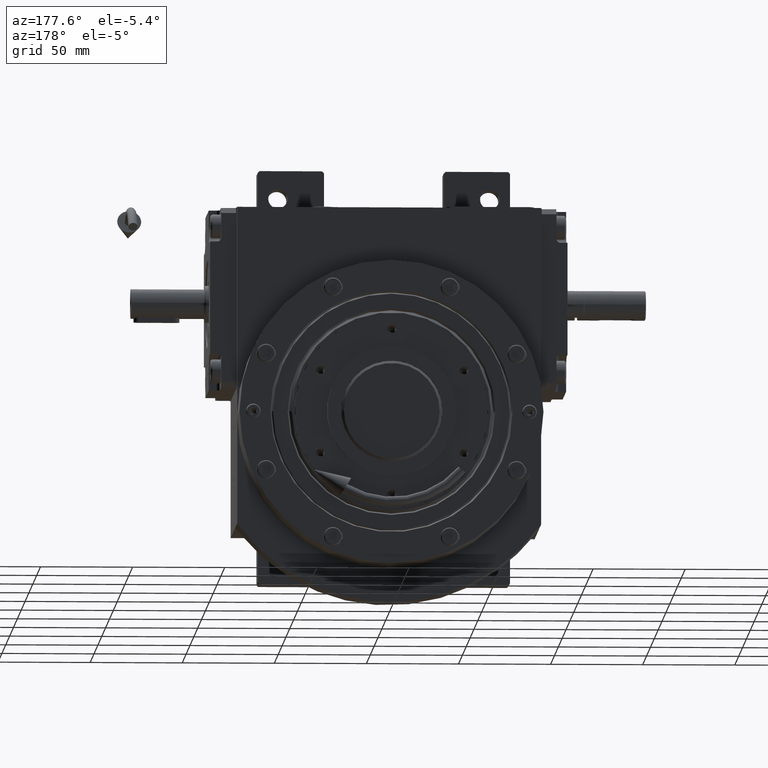
[diagram: clean part render]
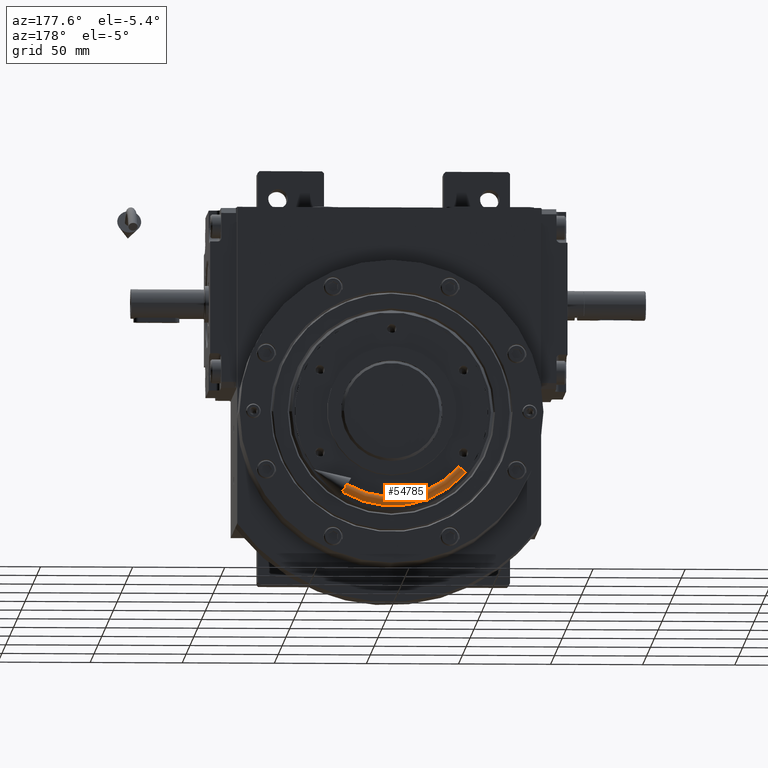
[diagram: same view with one face highlighted and labeled with its STEP entity id]
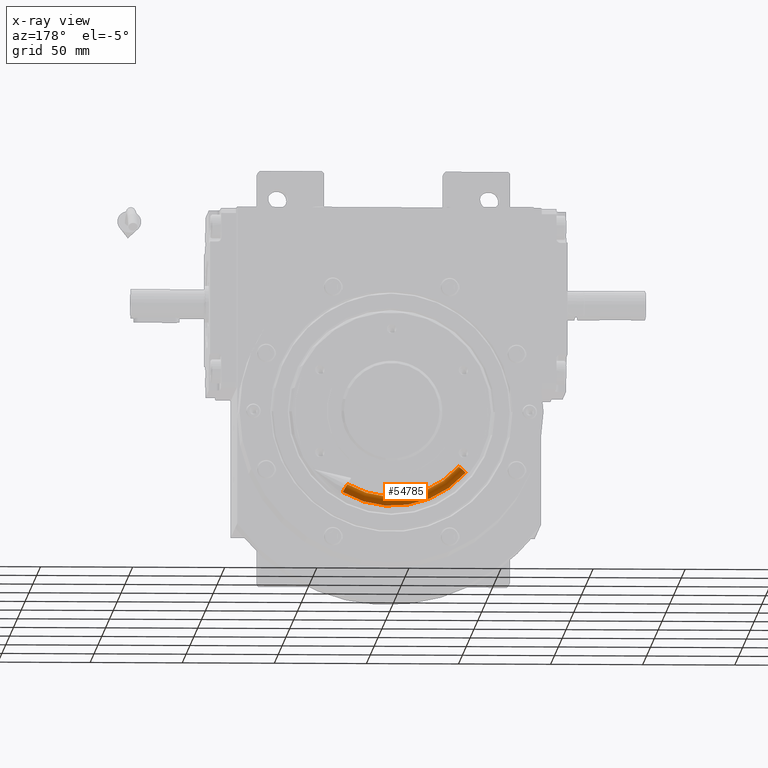
[diagram: x-ray of the same camera — body ghosted, the highlighted face saturated]
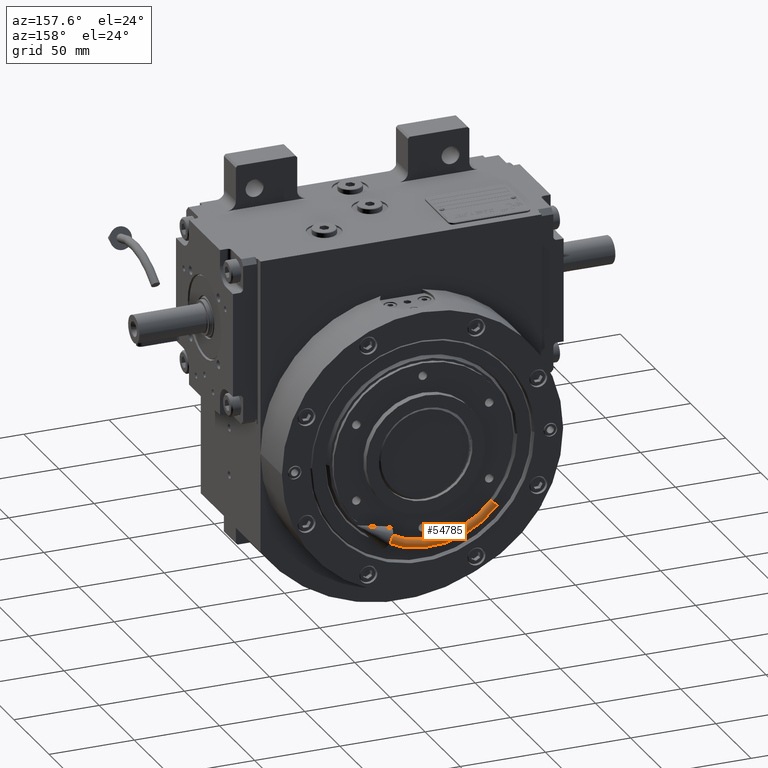
[diagram: same view with one face highlighted and labeled with its STEP entity id]
A machine part, auxiliary view. The second image highlights one B-rep face of the part: STEP entity #54785.
The next image is the same camera in x-ray: the body ghosted, the highlighted face saturated — about 0% of this face is hidden behind the body in this view.
A second angle (auxiliary view) of the same face is appended — the face is thin or edge-on in the first view.
In plain terms, the highlighted toroidal blend (fillet) surface has major radius 50 mm and minor (blend) radius 2.5 mm.
Its self-contained STEP definition (entity closure, byte-faithful):
#3119 = VERTEX_POINT ( 'NONE', #27699 ) ;
#3203 = ORIENTED_EDGE ( 'NONE', *, *, #52698, .T. ) ;
#5148 = AXIS2_PLACEMENT_3D ( 'NONE', #32487, #7249, #57035 ) ;
#7141 = CARTESIAN_POINT ( 'NONE',  ( 0.000000000000000000, -1.387778780781445676E-14, 0.000000000000000000 ) ) ;
#7249 = DIRECTION ( 'NONE',  ( 5.551115123125820913E-17, 0.000000000000000000, 1.000000000000000000 ) ) ;
#7599 = DIRECTION ( 'NONE',  ( -2.041375527991182042E-16, -1.000000000000000000, 1.232595164407830946E-32 ) ) ;
#13240 = EDGE_CURVE ( 'NONE', #3119, #46499, #48012, .T. ) ;
#13381 = FACE_OUTER_BOUND ( 'NONE', #51107, .T. ) ;
#14277 = CARTESIAN_POINT ( 'NONE',  ( -47.50000000001650591, 0.000000000000000000, -1.401656568589166416E-14 ) ) ;
#17032 = VERTEX_POINT ( 'NONE', #14277 ) ;
#17530 = CARTESIAN_POINT ( 'NONE',  ( -8.682408883346308670, -1.387778780781445676E-14, 49.24038765061003176 ) ) ;
#18246 = CARTESIAN_POINT ( 'NONE',  ( 0.000000000000000000, -1.387778780781445676E-14, 0.000000000000000000 ) ) ;
#20925 = TOROIDAL_SURFACE ( 'NONE', #32351, 50.00000000000000000, 2.499999999983133048 ) ;
#24825 = DIRECTION ( 'NONE',  ( -2.041375527991182042E-16, -1.000000000000000000, 1.232595164407830946E-32 ) ) ;
#25799 = CIRCLE ( 'NONE', #5148, 2.499999999983113064 ) ;
#27699 = CARTESIAN_POINT ( 'NONE',  ( -8.248288439181953535, -1.188784069127382043E-14, 46.77836826809632953 ) ) ;
#29166 = AXIS2_PLACEMENT_3D ( 'NONE', #63333, #24825, #58475 ) ;
#30176 = CIRCLE ( 'NONE', #29166, 47.50000000001686828 ) ;
#32351 = AXIS2_PLACEMENT_3D ( 'NONE', #18246, #7599, #42204 ) ;
#32487 = CARTESIAN_POINT ( 'NONE',  ( -49.99999999999962341, 0.000000000000000000, -1.387778780781445676E-14 ) ) ;
#32740 = DIRECTION ( 'NONE',  ( 0.1736481776669271393, 1.686894387621676009E-16, -0.9848077530122086864 ) ) ;
#36810 = ORIENTED_EDGE ( 'NONE', *, *, #13240, .F. ) ;
#37251 = DIRECTION ( 'NONE',  ( 0.9848077530122086864, -2.010362446775138044E-16, 0.1736481776669274446 ) ) ;
#40094 = CIRCLE ( 'NONE', #42188, 52.49999999998313882 ) ;
#40366 = ORIENTED_EDGE ( 'NONE', *, *, #42302, .T. ) ;
#41891 = CARTESIAN_POINT ( 'NONE',  ( -9.116529327510729530, -1.201676182087502474E-14, 51.70240703312413189 ) ) ;
#42188 = AXIS2_PLACEMENT_3D ( 'NONE', #7141, #46908, #52417 ) ;
#42204 = DIRECTION ( 'NONE',  ( 1.000000000000000000, -2.041375527991182042E-16, -5.551115123125820913E-17 ) ) ;
#42302 = EDGE_CURVE ( 'NONE', #17032, #52088, #25799, .T. ) ;
#46499 = VERTEX_POINT ( 'NONE', #41891 ) ;
#46908 = DIRECTION ( 'NONE',  ( -2.041375527991182042E-16, -1.000000000000000000, 1.232595164407830946E-32 ) ) ;
#48012 = CIRCLE ( 'NONE', #53206, 2.499999999983113064 ) ;
#48687 = EDGE_CURVE ( 'NONE', #46499, #52088, #40094, .T. ) ;
#51107 = EDGE_LOOP ( 'NONE', ( #55445, #36810, #3203, #40366 ) ) ;
#52088 = VERTEX_POINT ( 'NONE', #55683 ) ;
#52417 = DIRECTION ( 'NONE',  ( 1.000000000000000000, -2.041375527991181795E-16, 0.000000000000000000 ) ) ;
#52698 = EDGE_CURVE ( 'NONE', #3119, #17032, #30176, .T. ) ;
#53206 = AXIS2_PLACEMENT_3D ( 'NONE', #17530, #37251, #32740 ) ;
#54785 = ADVANCED_FACE ( 'NONE', ( #13381 ), #20925, .T. ) ;
#55445 = ORIENTED_EDGE ( 'NONE', *, *, #48687, .F. ) ;
#55683 = CARTESIAN_POINT ( 'NONE',  ( -52.49999999998293276, -3.160566285864233684E-15, -1.373900992973723831E-14 ) ) ;
#57035 = DIRECTION ( 'NONE',  ( 1.000000000000000000, 0.000000000000000000, -5.551115123125813517E-17 ) ) ;
#58475 = DIRECTION ( 'NONE',  ( 1.000000000000000000, -2.041375527991182042E-16, 0.000000000000000000 ) ) ;
#63333 = CARTESIAN_POINT ( 'NONE',  ( 6.249910015488181172E-32, -1.357162610802968412E-14, -3.773734306815928641E-48 ) ) ;